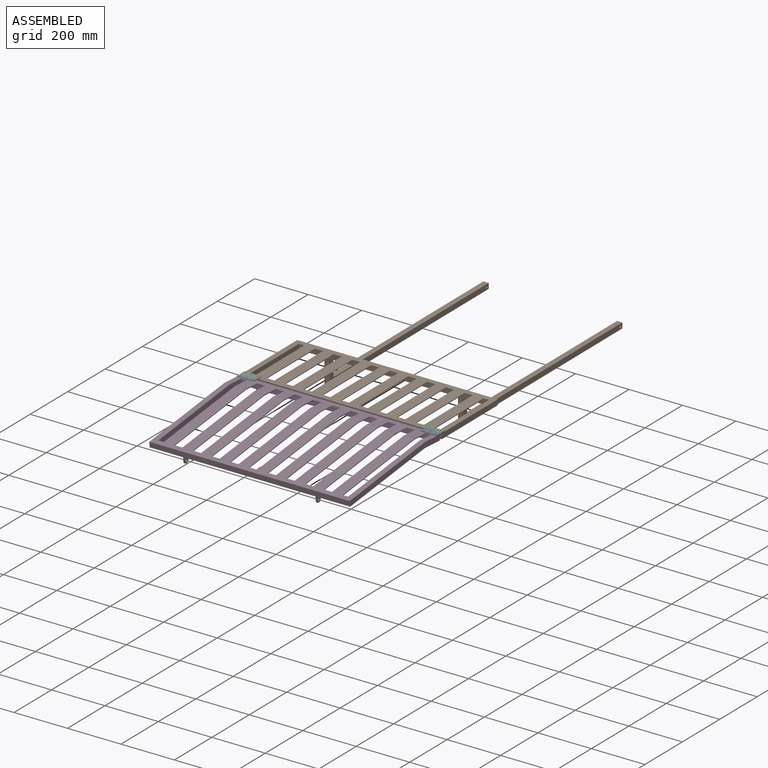
[diagram: assembled view]
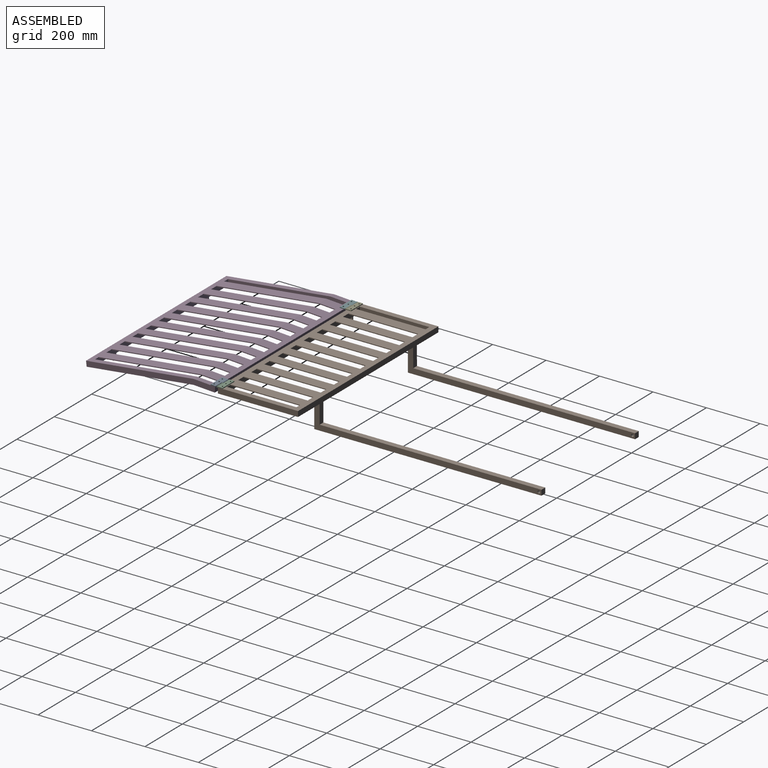
[diagram: assembled view, second angle]
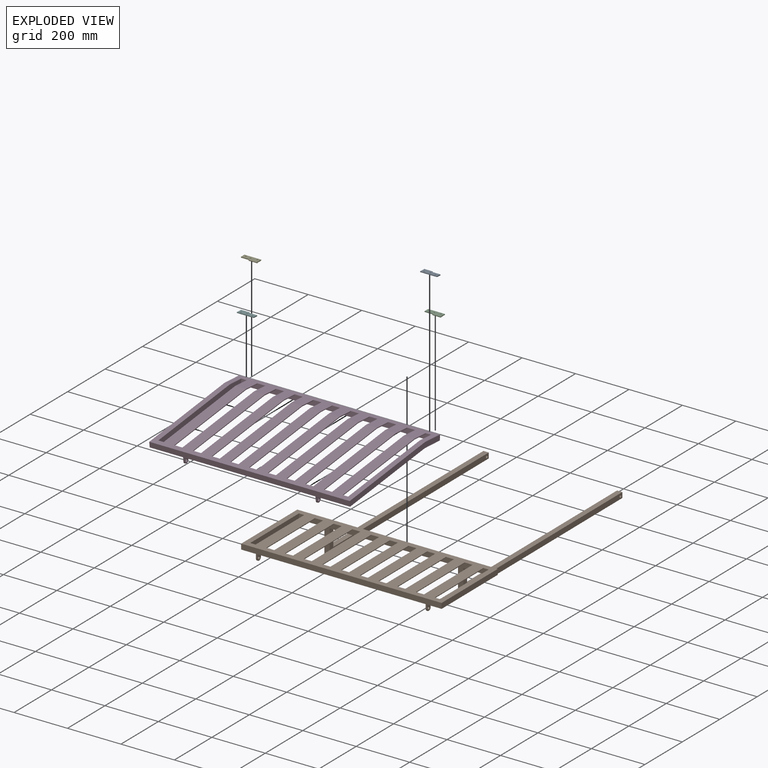
[diagram: exploded view]
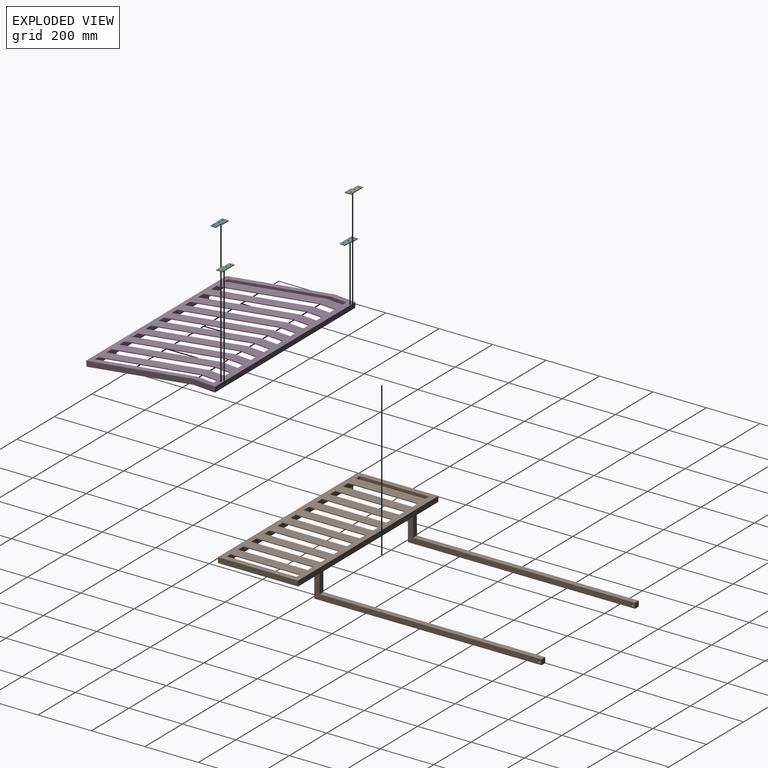
[diagram: exploded view, second angle]
ASSEMBLY  parts=6 mates=5
PART A: 12 faces, bbox 63x23.5x5 mm
  f0: plane 63x19mm, normal (0,0,1), area 1138.1mm2, adj f1,f3,f4,f5,f7,f9,f10,f11
  f1: plane 63x3mm, normal (0,-1,0), area 189mm2, adj f0,f2,f4,f5
  f2: plane 63x19mm, normal (0,0,-1), area 1138.1mm2, adj f1,f3,f4,f5,f7,f9,f10,f11
  f3: cylinder r=2.5mm len=32mm, axis (-1,0,0), area 103mm2, adj f0,f2,f4,f8
  f4: plane 19x3mm, normal (1,0,0), area 56mm2, adj f0,f1,f2,f3
  f5: plane 23.5x5mm, normal (-1,0,0), area 68.5mm2, adj f0,f1,f2,f6,f7
  f6: cylinder r=1.5mm len=31mm, axis (-1,0,0), area 292.2mm2, adj f5,f8
  f7: cylinder r=2.5mm len=31mm, axis (-1,0,0), area 387.2mm2, adj f0,f2,f5,f8
  f8: plane 5x5mm, normal (1,0,0), area 12.6mm2, adj f3,f6,f7
  f9: cylinder r=2.5mm len=5mm, axis (0,0,1), area 47.1mm2, adj f0,f2
  f10: cylinder r=2.5mm len=5mm, axis (0,0,1), area 47.1mm2, adj f0,f2
  f11: cylinder r=2.5mm len=5mm, axis (0,0,1), area 47.1mm2, adj f0,f2
PART B: 63 faces, bbox 750x1130x110 mm
  f0: plane 710x110mm, normal (0,-1,0), area 16618.4mm2, adj f3,f4,f5,f6,f7,f12,f13,f17
  f1: plane 710x35.19mm, normal (0,1,0), area 13151.9mm2, adj f2,f3,f5,f6,f7,f12,f25,f27
  f2: plane 630x20mm, normal (0,0,-1), area 12600mm2, adj f1,f11,f27,f32
  f3: plane 300x115mm, normal (0,0,-1), area 8600mm2, adj f0,f1,f7,f8,f9,f11,f18,f28
  f4: plane 480x20mm, normal (0,0,-1), area 9600mm2, adj f0,f9,f17,f24
  f5: plane 300x115mm, normal (0,0,-1), area 8600mm2, adj f0,f1,f9,f10,f11,f12,f23,f31
  f6: plane 750x300mm, normal (0,0,1), area 144400mm2, adj f0,f1,f7,f8,f9,f10,f11,f12
  f7: plane 260x20mm, normal (1,0,0), area 5200mm2, adj f0,f1,f3,f6
  f8: plane 300x20mm, normal (-1,0,0), area 6000mm2, adj f3,f6,f9,f11
  f9: plane 750x90mm, normal (0,1,0), area 17800mm2, adj f3,f4,f5,f6,f8,f10,f15,f17
  f10: plane 300x20mm, normal (1,0,0), area 6000mm2, adj f5,f6,f9,f11
  f11: plane 750x35.19mm, normal (0,-1,0), area 15151.9mm2, adj f2,f3,f5,f6,f8,f10,f25,f27
  f12: plane 260x20mm, normal (-1,0,0), area 5200mm2, adj f0,f1,f5,f6
  f13: plane 850x20mm, normal (0,0,-1), area 17000mm2, adj f0,f14,f17,f18
  f14: plane 20x20mm, normal (0,1,0), area 400mm2, adj f13,f15,f17,f18
  f15: plane 830x20mm, normal (0,0,1), area 16600mm2, adj f9,f14,f17,f18
  f16: cylinder r=5mm len=20mm, axis (-1,0,0), area 628.3mm2, adj f17,f18
  f17: plane 850x90mm, normal (1,0,0), area 18321.5mm2, adj f0,f4,f9,f13,f14,f15,f16
  f18: plane 850x90mm, normal (-1,0,0), area 18321.5mm2, adj f0,f3,f9,f13,f14,f15,f16
  f19: plane 850x20mm, normal (0,0,-1), area 17000mm2, adj f0,f20,f23,f24
  f20: plane 20x20mm, normal (0,1,0), area 400mm2, adj f19,f21,f23,f24
  f21: plane 830x20mm, normal (0,0,1), area 16600mm2, adj f9,f20,f23,f24
  f22: cylinder r=5mm len=20mm, axis (-1,0,0), area 628.3mm2, adj f23,f24
  f23: plane 850x90mm, normal (1,0,0), area 18321.5mm2, adj f0,f5,f9,f19,f20,f21,f22
  f24: plane 850x90mm, normal (-1,0,0), area 18321.5mm2, adj f0,f4,f9,f19,f20,f21,f22
  f25: cylinder r=10mm len=20mm, axis (-1,0,0), area 157.1mm2, adj f1,f11,f27,f28
  f26: cylinder r=5mm len=10mm, axis (-1,0,0), area 157.1mm2, adj f27,f28
  f27: plane 25.19x20mm, normal (1,0,0), area 382.3mm2, adj f1,f2,f11,f25,f26
  f28: plane 25.19x20mm, normal (-1,0,0), area 382.3mm2, adj f1,f3,f11,f25,f26
  f29: cylinder r=10mm len=20mm, axis (-1,0,0), area 157.1mm2, adj f1,f11,f31,f32
  f30: cylinder r=5mm len=10mm, axis (-1,0,0), area 157.1mm2, adj f31,f32
  f31: plane 25.19x20mm, normal (1,0,0), area 382.3mm2, adj f1,f5,f11,f29,f30
  f32: plane 25.19x20mm, normal (-1,0,0), area 382.3mm2, adj f1,f2,f11,f29,f30
  f33: plane 260x40mm, normal (0,0,-1), area 10400mm2, adj f0,f1,f34,f35
  f34: plane 260x3mm, normal (1,0,0), area 774mm2, adj f0,f1,f6,f33
  f35: plane 260x3mm, normal (-1,0,0), area 774mm2, adj f0,f1,f6,f33
  f36: plane 260x40mm, normal (0,0,-1), area 10400mm2, adj f0,f1,f37,f38
  f37: plane 260x3mm, normal (1,0,0), area 774mm2, adj f0,f1,f6,f36
  f38: plane 260x3mm, normal (-1,0,0), area 774mm2, adj f0,f1,f6,f36
  f39: plane 260x40mm, normal (0,0,-1), area 10400mm2, adj f0,f1,f40,f41
  f40: plane 260x3mm, normal (1,0,0), area 774mm2, adj f0,f1,f6,f39
  f41: plane 260x3mm, normal (-1,0,0), area 774mm2, adj f0,f1,f6,f39
  f42: plane 260x40mm, normal (0,0,-1), area 10400mm2, adj f0,f1,f43,f44
  f43: plane 260x3mm, normal (1,0,0), area 774mm2, adj f0,f1,f6,f42
  f44: plane 260x3mm, normal (-1,0,0), area 774mm2, adj f0,f1,f6,f42
  f45: plane 260x40mm, normal (0,0,-1), area 10400mm2, adj f0,f1,f46,f47
  f46: plane 260x3mm, normal (1,0,0), area 774mm2, adj f0,f1,f6,f45
  f47: plane 260x3mm, normal (-1,0,0), area 774mm2, adj f0,f1,f6,f45
  f48: plane 260x40mm, normal (0,0,-1), area 10400mm2, adj f0,f1,f49,f50
  f49: plane 260x3mm, normal (1,0,0), area 774mm2, adj f0,f1,f6,f48
  f50: plane 260x3mm, normal (-1,0,0), area 774mm2, adj f0,f1,f6,f48
  f51: plane 260x40mm, normal (0,0,-1), area 10400mm2, adj f0,f1,f52,f53
  f52: plane 260x3mm, normal (1,0,0), area 774mm2, adj f0,f1,f6,f51
  f53: plane 260x3mm, normal (-1,0,0), area 774mm2, adj f0,f1,f6,f51
  f54: plane 260x40mm, normal (0,0,-1), area 10400mm2, adj f0,f1,f55,f56
  f55: plane 260x3mm, normal (1,0,0), area 774mm2, adj f0,f1,f6,f54
  f56: plane 260x3mm, normal (-1,0,0), area 774mm2, adj f0,f1,f6,f54
  f57: plane 260x40mm, normal (0,0,-1), area 10400mm2, adj f0,f1,f58,f59
  f58: plane 260x3mm, normal (1,0,0), area 774mm2, adj f0,f1,f6,f57
  f59: plane 260x3mm, normal (-1,0,0), area 774mm2, adj f0,f1,f6,f57
  f60: plane 260x40mm, normal (0,0,-1), area 10400mm2, adj f0,f1,f61,f62
  f61: plane 260x3mm, normal (1,0,0), area 774mm2, adj f0,f1,f6,f60
  f62: plane 260x3mm, normal (-1,0,0), area 774mm2, adj f0,f1,f6,f60
PART C: 12 faces, bbox 63x23.5x5 mm
  f0: cylinder r=2.5mm len=32mm, axis (-1,0,0), area 103mm2, adj f2,f3,f5,f8
  f1: plane 63x3mm, normal (0,1,0), area 189mm2, adj f2,f3,f4,f5
  f2: plane 63x19mm, normal (0,0,1), area 1138.1mm2, adj f0,f1,f4,f5,f7,f9,f10,f11
  f3: plane 63x19mm, normal (0,0,-1), area 1138.1mm2, adj f0,f1,f4,f5,f7,f9,f10,f11
  f4: plane 23.5x5mm, normal (1,0,0), area 68.5mm2, adj f1,f2,f3,f6,f7
  f5: plane 19x3mm, normal (-1,0,0), area 56mm2, adj f0,f1,f2,f3
  f6: cylinder r=1.5mm len=31mm, axis (-1,0,0), area 292.2mm2, adj f4,f8
  f7: cylinder r=2.5mm len=31mm, axis (-1,0,0), area 387.2mm2, adj f2,f3,f4,f8
  f8: plane 5x5mm, normal (-1,0,0), area 12.6mm2, adj f0,f6,f7
  f9: cylinder r=2.5mm len=5mm, axis (0,0,1), area 47.1mm2, adj f2,f3
  f10: cylinder r=2.5mm len=5mm, axis (0,0,1), area 47.1mm2, adj f2,f3
  f11: cylinder r=2.5mm len=5mm, axis (0,0,1), area 47.1mm2, adj f2,f3
PART D: 64 faces, bbox 750x484.5x45 mm
  f0: plane 710x35mm, normal (0,1,0), area 13150mm2, adj f2,f3,f4,f6,f9,f13,f14,f16
  f1: plane 710x19.77mm, normal (0,-0.98,0.17), area 13034.5mm2, adj f5,f6,f12,f13,f25,f26,f27,f29
  f2: plane 490x20mm, normal (0,0,-1), area 9800mm2, adj f0,f8,f16,f21
  f3: plane 402.21x125mm, normal (0,0,-1), area 10144.1mm2, adj f0,f5,f6,f7,f8,f17
  f4: plane 402.21x125mm, normal (0,0,-1), area 10144.1mm2, adj f0,f5,f8,f10,f13,f20
  f5: plane 750x78.78mm, normal (0,-0.17,-0.98), area 17400mm2, adj f1,f3,f4,f6,f7,f10,f11,f13
  f6: plane 444.78x30.42mm, normal (1,0,0), area 8890.2mm2, adj f0,f1,f3,f5,f9,f12,f22
  f7: plane 484.47x33.89mm, normal (-1,0,0), area 9691mm2, adj f3,f5,f8,f9,f11,f12,f22
  f8: plane 750x35mm, normal (0,-1,0), area 15150mm2, adj f2,f3,f4,f7,f9,f10,f14,f16
  f9: plane 750x405.68mm, normal (0,0,1), area 184555.2mm2, adj f0,f6,f7,f8,f10,f12,f13,f22
  f10: plane 484.47x33.89mm, normal (1,0,0), area 9691mm2, adj f4,f5,f8,f9,f11,f12,f23
  f11: plane 750x19.7mm, normal (0,0.98,-0.17), area 15000mm2, adj f5,f7,f10,f12
  f12: plane 750x78.79mm, normal (0,0.18,0.98), area 41281.6mm2, adj f1,f6,f7,f9,f10,f11,f13,f22
  f13: plane 444.78x30.42mm, normal (-1,0,0), area 8890.2mm2, adj f0,f1,f4,f5,f9,f12,f23
  f14: cylinder r=10mm len=20mm, axis (-1,0,0), area 157.1mm2, adj f0,f8,f16,f17
  f15: cylinder r=5mm len=10mm, axis (-1,0,0), area 157.1mm2, adj f16,f17
  f16: plane 25x20mm, normal (1,0,0), area 378.5mm2, adj f0,f2,f8,f14,f15
  f17: plane 25x20mm, normal (-1,0,0), area 378.5mm2, adj f0,f3,f8,f14,f15
  f18: cylinder r=10mm len=20mm, axis (-1,0,0), area 157.1mm2, adj f0,f8,f20,f21
  f19: cylinder r=5mm len=10mm, axis (-1,0,0), area 157.1mm2, adj f20,f21
  f20: plane 25x20mm, normal (1,0,0), area 378.5mm2, adj f0,f4,f8,f18,f19
  f21: plane 25x20mm, normal (-1,0,0), area 378.5mm2, adj f0,f2,f8,f18,f19
  f22: cylinder r=40mm len=20mm, axis (-1,0,0), area 142.6mm2, adj f6,f7,f9,f12
  f23: cylinder r=40mm len=20mm, axis (-1,0,0), area 142.6mm2, adj f9,f10,f12,f13
  f24: plane 385.05x40mm, normal (0,0,-1), area 15402.1mm2, adj f0,f25,f26,f27
  f25: plane 59.2x40mm, normal (0,-0.18,-0.98), area 2406mm2, adj f1,f24,f26,f27
  f26: plane 444.78x13.65mm, normal (1,0,0), area 1339.7mm2, adj f0,f1,f9,f12,f24,f25
  f27: plane 444.78x13.65mm, normal (-1,0,0), area 1339.7mm2, adj f0,f1,f9,f12,f24,f25
  f28: plane 385.05x40mm, normal (0,0,-1), area 15402.1mm2, adj f0,f29,f30,f31
  f29: plane 59.2x40mm, normal (0,-0.18,-0.98), area 2406mm2, adj f1,f28,f30,f31
  f30: plane 444.78x13.65mm, normal (1,0,0), area 1339.7mm2, adj f0,f1,f9,f12,f28,f29
  f31: plane 444.78x13.65mm, normal (-1,0,0), area 1339.7mm2, adj f0,f1,f9,f12,f28,f29
  f32: plane 385.05x40mm, normal (0,0,-1), area 15402.1mm2, adj f0,f33,f34,f35
  f33: plane 59.2x40mm, normal (0,-0.18,-0.98), area 2406mm2, adj f1,f32,f34,f35
  f34: plane 444.78x13.65mm, normal (1,0,0), area 1339.7mm2, adj f0,f1,f9,f12,f32,f33
  f35: plane 444.78x13.65mm, normal (-1,0,0), area 1339.7mm2, adj f0,f1,f9,f12,f32,f33
  f36: plane 385.05x40mm, normal (0,0,-1), area 15402.1mm2, adj f0,f37,f38,f39
  f37: plane 59.2x40mm, normal (0,-0.18,-0.98), area 2406mm2, adj f1,f36,f38,f39
  f38: plane 444.78x13.65mm, normal (1,0,0), area 1339.7mm2, adj f0,f1,f9,f12,f36,f37
  f39: plane 444.78x13.65mm, normal (-1,0,0), area 1339.7mm2, adj f0,f1,f9,f12,f36,f37
  f40: plane 385.05x40mm, normal (0,0,-1), area 15402.1mm2, adj f0,f41,f42,f43
  f41: plane 59.2x40mm, normal (0,-0.18,-0.98), area 2406mm2, adj f1,f40,f42,f43
  f42: plane 444.78x13.65mm, normal (1,0,0), area 1339.7mm2, adj f0,f1,f9,f12,f40,f41
  f43: plane 444.78x13.65mm, normal (-1,0,0), area 1339.7mm2, adj f0,f1,f9,f12,f40,f41
  f44: plane 385.05x40mm, normal (0,0,-1), area 15402.1mm2, adj f0,f45,f46,f47
  f45: plane 59.2x40mm, normal (0,-0.18,-0.98), area 2406mm2, adj f1,f44,f46,f47
  f46: plane 444.78x13.65mm, normal (1,0,0), area 1339.7mm2, adj f0,f1,f9,f12,f44,f45
  f47: plane 444.78x13.65mm, normal (-1,0,0), area 1339.7mm2, adj f0,f1,f9,f12,f44,f45
  f48: plane 385.05x40mm, normal (0,0,-1), area 15402.1mm2, adj f0,f49,f50,f51
  f49: plane 59.2x40mm, normal (0,-0.18,-0.98), area 2406mm2, adj f1,f48,f50,f51
  f50: plane 444.78x13.65mm, normal (1,0,0), area 1339.7mm2, adj f0,f1,f9,f12,f48,f49
  f51: plane 444.78x13.65mm, normal (-1,0,0), area 1339.7mm2, adj f0,f1,f9,f12,f48,f49
  f52: plane 385.05x40mm, normal (0,0,-1), area 15402.1mm2, adj f0,f53,f54,f55
  f53: plane 59.2x40mm, normal (0,-0.18,-0.98), area 2406mm2, adj f1,f52,f54,f55
  f54: plane 444.78x13.65mm, normal (1,0,0), area 1339.7mm2, adj f0,f1,f9,f12,f52,f53
  f55: plane 444.78x13.65mm, normal (-1,0,0), area 1339.7mm2, adj f0,f1,f9,f12,f52,f53
  f56: plane 385.05x40mm, normal (0,0,-1), area 15402.1mm2, adj f0,f57,f58,f59
  f57: plane 59.2x40mm, normal (0,-0.18,-0.98), area 2406mm2, adj f1,f56,f58,f59
  f58: plane 444.78x13.65mm, normal (1,0,0), area 1339.7mm2, adj f0,f1,f9,f12,f56,f57
  f59: plane 444.78x13.65mm, normal (-1,0,0), area 1339.7mm2, adj f0,f1,f9,f12,f56,f57
  f60: plane 385.05x40mm, normal (0,0,-1), area 15402.1mm2, adj f0,f61,f62,f63
  f61: plane 59.2x40mm, normal (0,-0.18,-0.98), area 2406mm2, adj f1,f60,f62,f63
  f62: plane 444.78x13.65mm, normal (1,0,0), area 1339.7mm2, adj f0,f1,f9,f12,f60,f61
  f63: plane 444.78x13.65mm, normal (-1,0,0), area 1339.7mm2, adj f0,f1,f9,f12,f60,f61
PART E: same geometry as C
PART F: same geometry as A
PLACE A rot(axis=(-1,0,0),3.7deg) t=(723.7,353.42,-112.42)mm
PLACE B rot(axis=(1,0,0),0.1deg) t=(35.7,298.17,-53.33)mm
PLACE C rot(axis=(1,0,0),0.1deg) t=(722.67,350.41,-98.96)mm
PLACE D rot(axis=(1,0,0),6.5deg) t=(36.7,396.61,-6.03)mm
PLACE E rot(axis=(1,0,0),0.1deg) t=(35.7,350.33,-98.96)mm
PLACE F rot(axis=(-1,0,0),3.7deg) t=(36.7,355.45,-112.56)mm
MATE fastened B.f6 <-> C.f3  axis (0,0,1) through (410.7,312.71,-48.14)mm
MATE fastened E.f3 <-> B.f6  axis (0,0,-1) through (35.7,170.71,-48.47)mm
MATE fastened A.f2 <-> D.f12  axis (0,-0.06,-1) through (786.7,155.08,-48.24)mm
MATE fastened D.f12 <-> F.f2  axis (0,0.06,1) through (411.7,117.77,-45.82)mm
MATE revolute F.f3 <-> E.f0  axis (-1,0,0) through (67.7,159.2,-47)mm
